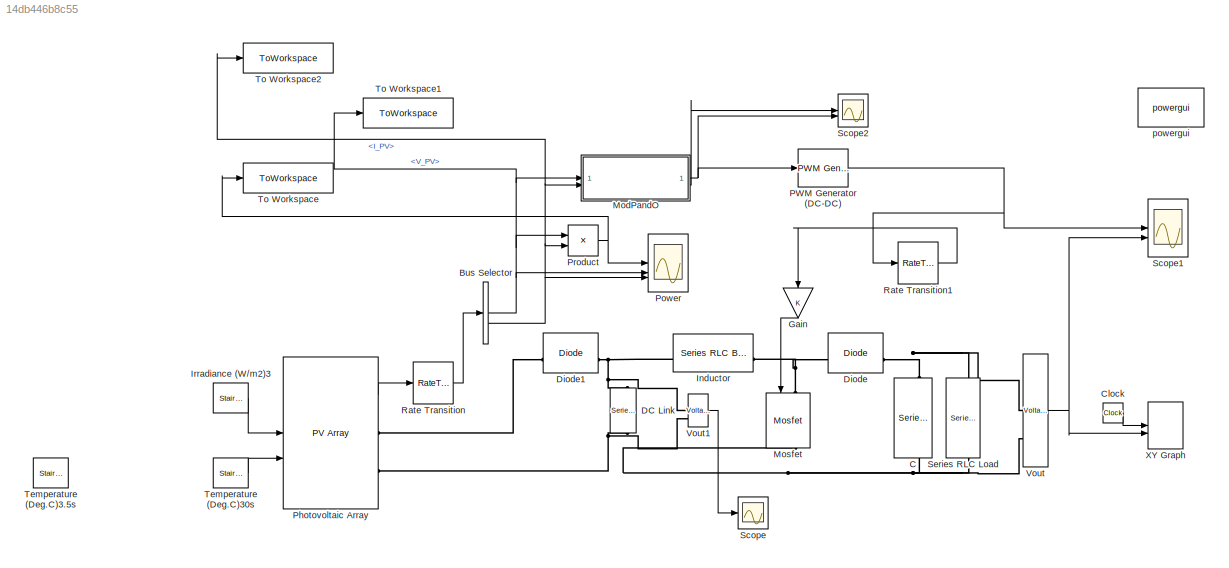
MODEL slx_14db446b8c55
KIND model
CONFIG AbsTol = auto
CONFIG EnableMultiTasking = off
CONFIG FixedStep = 1e-6
CONFIG MaxStep = auto
CONFIG MinStep = auto
CONFIG RelTol = 1e-3
CONFIG SampleTimeConstraint = Unconstrained
CONFIG SolverName = FixedStepAuto
CONFIG StartTime = 0.0
CONFIG StopTime = 30
BLOCK [BusSelector] Bus Selector
  OutputSignals = V_PV,I_PV
BLOCK [Reference] C  REF=spsSeriesRLCBranchLib/Series RLC Branch
  LibrarySourceBlock = sps_lib/Passives/Series RLC Branch
  NameLocation = left
  SourceBlock = spsSeriesRLCBranchLib/Series RLC Branch
  SourceType = Series RLC Branch
BLOCK [Clock] Clock
  Decimation = 1
BLOCK [Reference] DC Link  REF=spsSeriesRLCBranchLib/Series RLC Branch
  AttributesFormatString = \n
  LibrarySourceBlock = sps_lib/Passives/Series RLC Branch
  NameLocation = left
  SourceBlock = spsSeriesRLCBranchLib/Series RLC Branch
  SourceType = Series RLC Branch
BLOCK [Reference] Diode  REF=spsDiodeLib/Diode
  LibrarySourceBlock = sps_lib/Power Electronics/Diode
  SourceBlock = spsDiodeLib/Diode
  SourceType = Diode
BLOCK [Reference] Diode1  REF=spsDiodeLib/Diode
  LibrarySourceBlock = sps_lib/Power Electronics/Diode
  SourceBlock = spsDiodeLib/Diode
  SourceType = Diode
BLOCK [Gain] Gain
  NameLocation = left
BLOCK [Reference] Inductor  REF=spsSeriesRLCBranchLib/Series RLC Branch
  LibrarySourceBlock = sps_lib/Passives/Series RLC Branch
  SourceBlock = spsSeriesRLCBranchLib/Series RLC Branch
  SourceType = Series RLC Branch
BLOCK [Reference] Irradiance (W//m2)3  REF=spsStairGeneratorLib/Stair
Generator
  LibrarySourceBlock = sps_lib/Sources/Signal Generator Sources/Stair\nGenerator
  NameLocation = top
  SourceBlock = spsStairGeneratorLib/Stair\nGenerator
  SourceType = Stair Generator
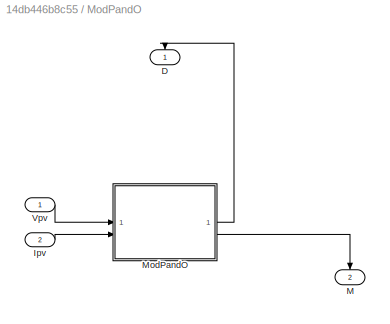
BLOCK [SubSystem] ModPandO
BLOCK [Outport] ModPandO/D
  NameLocation = right
  VectorParamsAs1DForOutWhenUnconnected = off
BLOCK [Inport] ModPandO/Ipv
  Port = 2
BLOCK [Outport] ModPandO/M
  NameLocation = right
  Port = 2
  VectorParamsAs1DForOutWhenUnconnected = off
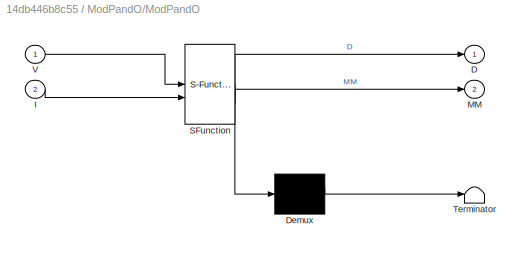
BLOCK [SubSystem] ModPandO/ModPandO
  ErrorFcn = Stateflow.Translate.translate
  PermitHierarchicalResolution = ExplicitOnly
  SFBlockType = MATLAB Function
  TreatAsAtomicUnit = on
BLOCK [Demux] ModPandO/ModPandO/ Demux 
  Outputs = 1
BLOCK [S-Function] ModPandO/ModPandO/ SFunction 
  EnableBusSupport = on
  FunctionName = sf_sfun
  PortCounts = [2 3]
  SFcnIsStateOwnerBlock = off
  SFunctionDeploymentMode = off
  Tag = Stateflow S-Function 2
BLOCK [Terminator] ModPandO/ModPandO/ Terminator 
BLOCK [Outport] ModPandO/ModPandO/D
  VectorParamsAs1DForOutWhenUnconnected = off
BLOCK [Inport] ModPandO/ModPandO/I
  Port = 2
BLOCK [Outport] ModPandO/ModPandO/MM
  Port = 2
BLOCK [Inport] ModPandO/ModPandO/V
BLOCK [Inport] ModPandO/Vpv
BLOCK [Reference] Mosfet  REF=spsMosfetLib/Mosfet
  LibrarySourceBlock = sps_lib/Power Electronics/Mosfet
  NameLocation = left
  SourceBlock = spsMosfetLib/Mosfet
  SourceType = Mosfet
BLOCK [Reference] PWM Generator (DC-DC)  REF=spsPWMGeneratorDCDCLib/PWM Generator
(DC-DC)
  LibrarySourceBlock = sps_lib/Power Electronics/Power Electronics Control/PWM Generator\n(DC-DC)
  SourceBlock = spsPWMGeneratorDCDCLib/PWM Generator\n(DC-DC)
  SourceType = PWM Generator (DC-DC)
BLOCK [Reference] Photovoltaic Array  REF=spsPVArrayLib/PV Array
  AttributesFormatString = %<ModuleName>\n%<Nser>-module string\n%<Npar> parallel strings
  SourceBlock = spsPVArrayLib/PV Array
  SourceType = PV array
BLOCK [Scope] Power
  Floating = off
  NumInputPorts = 3
  ScopeSpecificationString = Simulink.scopes.TimeScopeBlockCfg('CurrentConfiguration', extmgr.ConfigurationSet(extmgr.Configuration('Core','General UI',true,'FigureColor',[0.156862745098039 0.156862745098039 0.156862745098039]),extmgr.Configuration('Core','Source UI',true),extmgr.Configuration('Sources','WiredSimulink',true,'DataLogging',true,'DataLoggingVariableName','pm','SampleTime','0','DataLoggingSaveFormat','StructureWi...<+2946ch>
BLOCK [Product] Product
  RndMeth = Zero
BLOCK [RateTransition] Rate Transition
  OutPortSampleTime = 1e-6
BLOCK [RateTransition] Rate Transition1
  OutPortSampleTime = 1e-6
BLOCK [Scope] Scope
  Floating = off
  NumInputPorts = 1
  ScopeSpecificationString = Simulink.scopes.TimeScopeBlockCfg('CurrentConfiguration', extmgr.ConfigurationSet(extmgr.Configuration('Core','General UI',true),extmgr.Configuration('Core','Source UI',true),extmgr.Configuration('Sources','WiredSimulink',true),extmgr.Configuration('Visuals','Time Domain',true,'SerializedDisplays',{struct('MinYLimReal','-5.1541','MaxYLimReal','46.39017','YLabelReal','','MinYLimMag','0.00000','MaxY...<+1399ch>
BLOCK [Scope] Scope1
  Floating = off
  NumInputPorts = 2
  ScopeSpecificationString = Simulink.scopes.TimeScopeBlockCfg('CurrentConfiguration', extmgr.ConfigurationSet(extmgr.Configuration('Core','General UI',true),extmgr.Configuration('Core','Source UI',true),extmgr.Configuration('Sources','WiredSimulink',true,'DataLoggingVariableName','ScopeData1','DataLoggingSaveFormat','Array','DataLoggingDecimation','1','DataLoggingDecimateData',true),extmgr.Configuration('Visuals','Time Domai...<+2318ch>
BLOCK [Scope] Scope2
  Floating = off
  NumInputPorts = 2
  ScopeSpecificationString = Simulink.scopes.TimeScopeBlockCfg('CurrentConfiguration', extmgr.ConfigurationSet(extmgr.Configuration('Core','General UI',true),extmgr.Configuration('Core','Source UI',true),extmgr.Configuration('Sources','WiredSimulink',true,'DataLoggingVariableName','ScopeData1'),extmgr.Configuration('Visuals','Time Domain',true,'SerializedDisplays',{struct('MinYLimReal','-291243.5','MaxYLimReal','2621211.5','Y...<+2275ch>
BLOCK [Reference] Series RLC Load  REF=spsSeriesRLCLoadLib/Series RLC Load
  AttributesFormatString = \n
  LibrarySourceBlock = sps_lib/Passives/Series RLC Load
  NameLocation = left
  SourceBlock = spsSeriesRLCLoadLib/Series RLC Load
  SourceType = Series RLC Load
BLOCK [Reference] Temperature (Deg.C)3.5s  REF=spsStairGeneratorLib/Stair
Generator
  LibrarySourceBlock = sps_lib/Sources/Signal Generator Sources/Stair\nGenerator
  NameLocation = top
  SourceBlock = spsStairGeneratorLib/Stair\nGenerator
  SourceType = Stair Generator
BLOCK [Reference] Temperature (Deg.C)30s  REF=spsStairGeneratorLib/Stair
Generator
  LibrarySourceBlock = sps_lib/Sources/Signal Generator Sources/Stair\nGenerator
  NameLocation = top
  SourceBlock = spsStairGeneratorLib/Stair\nGenerator
  SourceType = Stair Generator
BLOCK [ToWorkspace] To Workspace
  FixptAsFi = on
  MaxDataPoints = inf
  SampleTime = -1
  SaveFormat = Timeseries
  VariableName = power_po
BLOCK [ToWorkspace] To Workspace1
  FixptAsFi = on
  MaxDataPoints = inf
  SampleTime = -1
  SaveFormat = Timeseries
  VariableName = voltage_po
BLOCK [ToWorkspace] To Workspace2
  FixptAsFi = on
  MaxDataPoints = inf
  SampleTime = -1
  SaveFormat = Timeseries
  VariableName = current_po
BLOCK [Reference] Vout  REF=spsVoltageMeasurementLib/Voltage Measurement
  SourceBlock = spsVoltageMeasurementLib/Voltage Measurement
  SourceType = Voltage Measurement
  UserDataPersistent = on
BLOCK [Reference] Vout1  REF=spsVoltageMeasurementLib/Voltage Measurement
  SourceBlock = spsVoltageMeasurementLib/Voltage Measurement
  SourceType = Voltage Measurement
  UserDataPersistent = on
BLOCK [Record] XY Graph
  CompatibilityTag = XY
  FileSettingsInternal = {"entries":[{"content":{"excelSettings":{"content":{},"type":"Streamout.ExcelSettings"}},"type":"Streamout.FileSettingStorage","uuid":""}],"packageUris":["http:\/\/schema.mathworks.com\/mf0\/streamout_blocks\/R2020a"],"version":"1.0"}
  Layout = [1 1]
  SignalsInternal = {"entries":[{"content":{"signals":[{"content":{"blockPath":[],"dimensions":[1],"domain":"","lineColor":"#22b573","lineWidth":2,"port":1,"signalID":1,"signalName":"Clock"},"type":"RecordBlkView.Signal","uuid":""},{"content":{"blockPath":[],"dimensions":[1],"domain":"","lineColor":"#0072bd","lineWidth":2,"port":2,"signalID":2,"signalName":"Vout"},"type":"RecordBlkView.Signal","uuid":""}]},"type":"Re...<+133ch>
  VisualizationBindings = {"xyplotplugin":{"info":[{"series":[],"subplotID":1}]}}
  st = 0.0001
BLOCK [Reference] powergui  REF=spspowerguiLib/powergui
  Priority = 1
  SourceBlock = spspowerguiLib/powergui
  SourceType = PSB option menu block
NET Bus Selector:1 -> ModPandO:1, Power:2, Product:1, To Workspace1:1
NET Bus Selector:2 -> ModPandO:2, Power:3, Product:2, To Workspace2:1
LINE Clock:1 -> XY Graph:1
LINE Gain:1 -> Mosfet:1
LINE Irradiance (W//m2)3:1 -> Photovoltaic Array:1
LINE ModPandO/Ipv:1 -> ModPandO/ModPandO:2
LINE ModPandO/ModPandO:1 -> ModPandO/D:1
LINE ModPandO/ModPandO:2 -> ModPandO/M:1
LINE ModPandO/Vpv:1 -> ModPandO/ModPandO:1
NET ModPandO:1 -> PWM Generator (DC-DC):1, Scope2:2
LINE ModPandO:2 -> Scope2:1
NET PWM Generator (DC-DC):1 -> Rate Transition1:1, Scope1:1
LINE Photovoltaic Array:1 -> Rate Transition:1
NET Product:1 -> Power:1, To Workspace:1
LINE Rate Transition1:1 -> Gain:1
LINE Rate Transition:1 -> Bus Selector:1
LINE Temperature (Deg.C)30s:1 -> Photovoltaic Array:2
LINE Vout1:1 -> Scope:1
NET Vout:1 -> Scope1:2, XY Graph:2
PNET net1: C:LConn1 -- Diode:RConn1 -- Series RLC Load:LConn1 -- Vout:LConn1
PNET net2: C:RConn1 -- DC Link:RConn1 -- Mosfet:RConn1 -- Photovoltaic Array:RConn2 -- Series RLC Load:RConn1 -- Vout1:LConn2 -- Vout:LConn2
PNET net3: DC Link:LConn1 -- Diode1:RConn1 -- Inductor:LConn1 -- Vout1:LConn1
PLINE Diode1:LConn1 -- Photovoltaic Array:RConn1
PNET net4: Diode:LConn1 -- Inductor:RConn1 -- Mosfet:LConn1
note: NET lines group one-source signal fan-out (src -> all destinations, sorted); 1:1 wires keep LINE; PNET lines group multi-terminal physical nets as a canonical sorted terminal list (undirected conserving connections); 2-terminal nets keep the pairwise PLINE form
CHART ModPandO/ModPandO states=1 transitions=1
  STATE_LABEL 'eML_blk_kernel()'
  STATE_LABEL "SCRIPT:\n    function [D, MM ] = ModPandO(V, I)\n    \n    Dinit = 0.01;  %Initial value for D output\n    \n    persistent Vold Pold Dold M N;\n    \n    dataType = 'double';\n    \n    if isempty(Vold)\n        Vold=0;\n        Pold=0;\n        Dold=Dinit;\n        M=1;\n        MM=1;\n        N=1;\n    end\n    \n    %%\n    Ts = 1e-04;\n    \n    Num1 = 0.2/Ts;\n    Num2 = 0.6/Ts;\n    Num3 = 1.0/Ts;\n    \n    deltaD...<+719ch>"
CHART  states=0 transitions=0
